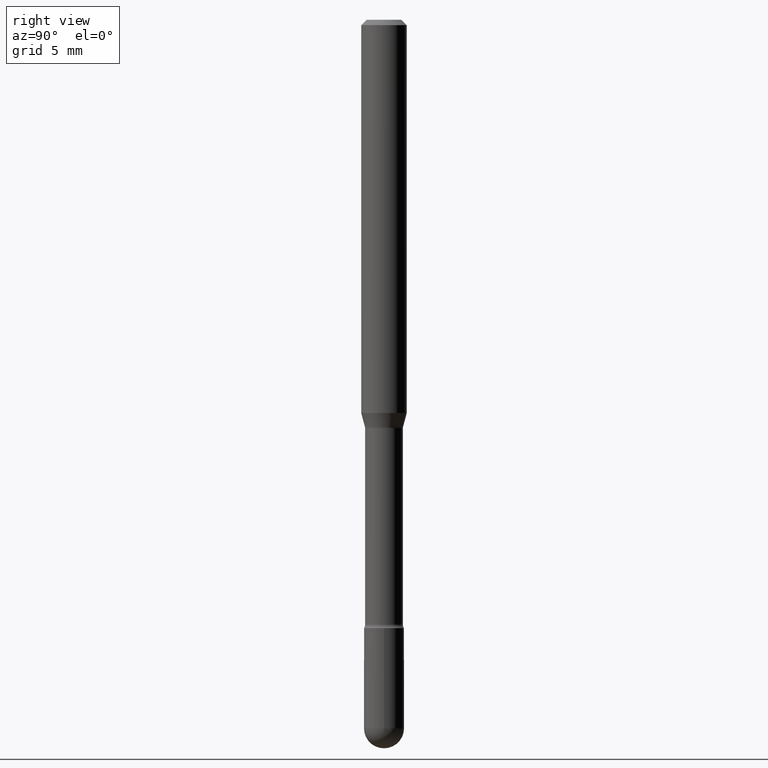
[diagram: clean part render]
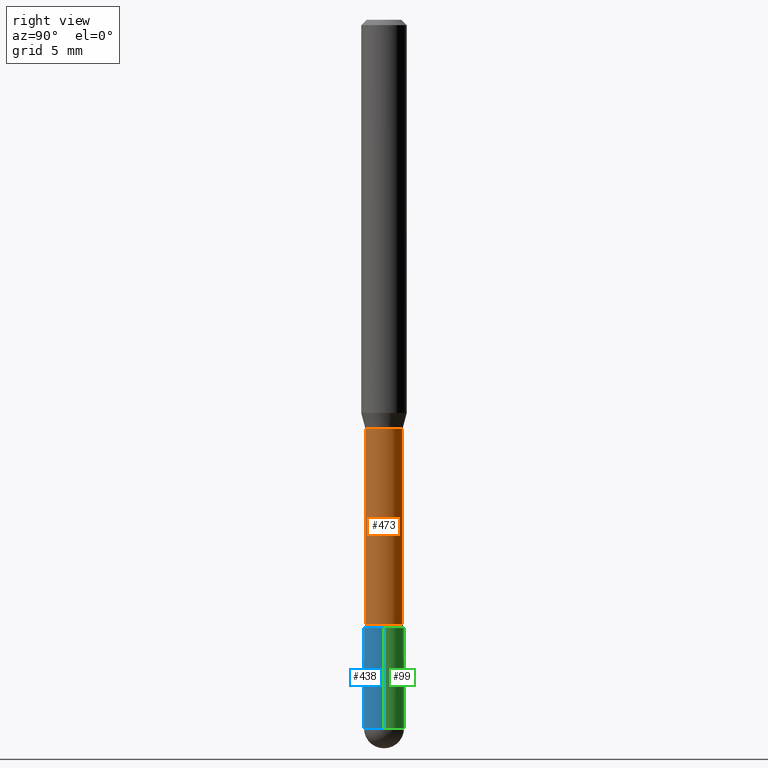
[diagram: same view with three faces highlighted in distinct colors, each labeled with its STEP entity id]
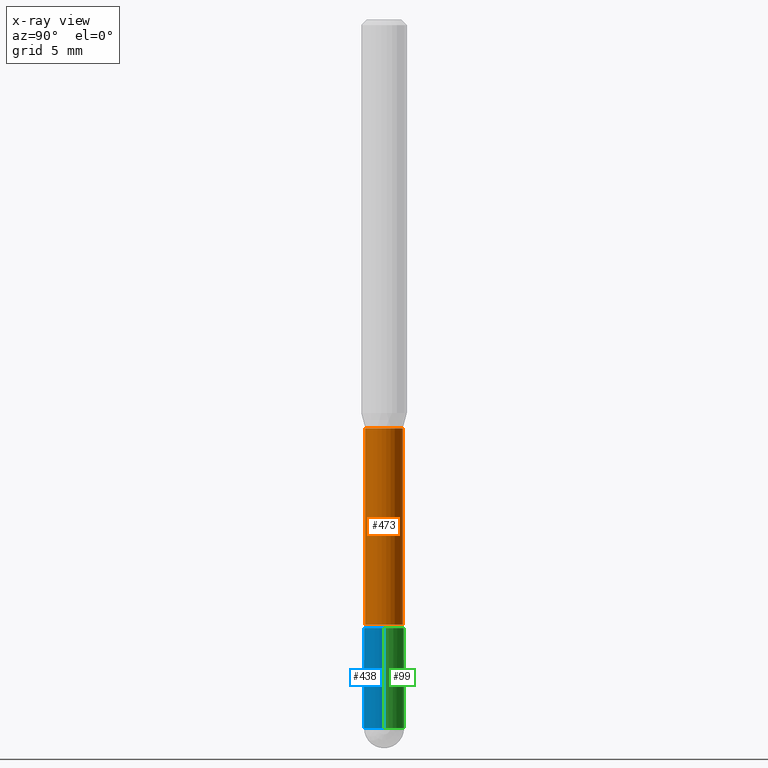
[diagram: x-ray of the same camera — body ghosted, the three highlighted faces saturated]
A machine part, right view with three faces highlighted in distinct colors.
The next image is the same camera in x-ray (body ghosted, the three faces saturated) — at least one of them is partly hidden behind the body in this view.
Their STEP definitions:

[orange] entity #473 — the highlighted cylindrical surface (edge-blend (fillet) strip) has radius 1.3132 mm, axis along (-0, 0, 1).
#15 = DIRECTION ( 'NONE',  ( -2.445407676083819856E-29, 3.491568880627540289E-15, 1.000000000000000000 ) ) ;
#21 = CARTESIAN_POINT ( 'NONE',  ( -3.610191704363525413E-16, -0.05170000000000391643, -1.121974787463810408 ) ) ;
#47 = DIRECTION ( 'NONE',  ( -2.445407676083820136E-29, 3.491568880627540684E-15, 1.000000000000000000 ) ) ;
#49 = CARTESIAN_POINT ( 'NONE',  ( -3.610191704363799542E-16, -0.05170000000000000984, 6.585875100196899420E-16 ) ) ;
#66 = VERTEX_POINT ( 'NONE', #188 ) ;
#68 = CARTESIAN_POINT ( 'NONE',  ( -3.610191704363393772E-16, -0.05170000000000580381, -1.660613307291702423 ) ) ;
#72 = EDGE_CURVE ( 'NONE', #139, #157, #274, .T. ) ;
#97 = CARTESIAN_POINT ( 'NONE',  ( 4.060876528658069036E-29, -5.798145746495687902E-15, -1.660613307291702645 ) ) ;
#125 = ORIENTED_EDGE ( 'NONE', *, *, #445, .T. ) ;
#139 = VERTEX_POINT ( 'NONE', #21 ) ;
#140 = ORIENTED_EDGE ( 'NONE', *, *, #72, .F. ) ;
#142 = CARTESIAN_POINT ( 'NONE',  ( 3.673505943879717674E-16, 0.05170000000000000984, 2.975592877628021845E-16 ) ) ;
#156 = VERTEX_POINT ( 'NONE', #68 ) ;
#157 = VERTEX_POINT ( 'NONE', #229 ) ;
#170 = AXIS2_PLACEMENT_3D ( 'NONE', #97, #392, #399 ) ;
#175 = DIRECTION ( 'NONE',  ( -6.982962677686264344E-15, -1.000000000000000000, 3.491568880627541472E-15 ) ) ;
#187 = LINE ( 'NONE', #49, #564 ) ;
#188 = CARTESIAN_POINT ( 'NONE',  ( 3.790745495280543333E-16, 0.05169999999999420892, -1.660613307291702867 ) ) ;
#199 = AXIS2_PLACEMENT_3D ( 'NONE', #302, #343, #351 ) ;
#229 = CARTESIAN_POINT ( 'NONE',  ( 3.673505943880124923E-16, 0.05169999999999608242, -1.121974787463810630 ) ) ;
#262 = DIRECTION ( 'NONE',  ( -2.445407676083820136E-29, 3.491568880627540684E-15, 1.000000000000000000 ) ) ;
#266 = VECTOR ( 'NONE', #47, 39.37007874015748143 ) ;
#274 = CIRCLE ( 'NONE', #199, 0.05169999999999999596 ) ;
#302 = CARTESIAN_POINT ( 'NONE',  ( 2.743685757636514804E-29, -3.917452252757339615E-15, -1.121974787463810630 ) ) ;
#323 = EDGE_LOOP ( 'NONE', ( #125, #332, #140, #562 ) ) ;
#332 = ORIENTED_EDGE ( 'NONE', *, *, #541, .T. ) ;
#343 = DIRECTION ( 'NONE',  ( -2.445407676083819856E-29, 3.491568880627540289E-15, 1.000000000000000000 ) ) ;
#348 = LINE ( 'NONE', #142, #266 ) ;
#351 = DIRECTION ( 'NONE',  ( -6.982962677686266711E-15, -1.000000000000000000, 2.642019336232363246E-15 ) ) ;
#384 = CARTESIAN_POINT ( 'NONE',  ( -1.169113584055446105E-44, 1.669184350826100908E-30, 4.780733988912460139E-16 ) ) ;
#392 = DIRECTION ( 'NONE',  ( -2.445407676083819856E-29, 3.491568880627540289E-15, 1.000000000000000000 ) ) ;
#395 = CIRCLE ( 'NONE', #170, 0.05170000000000000984 ) ;
#399 = DIRECTION ( 'NONE',  ( -6.982962677686264344E-15, -1.000000000000000000, 5.284038672464724914E-15 ) ) ;
#443 = FACE_OUTER_BOUND ( 'NONE', #323, .T. ) ;
#444 = CYLINDRICAL_SURFACE ( 'NONE', #489, 0.05170000000000000984 ) ;
#445 = EDGE_CURVE ( 'NONE', #156, #66, #395, .T. ) ;
#473 = ADVANCED_FACE ( 'NONE', ( #443 ), #444, .T. ) ;
#489 = AXIS2_PLACEMENT_3D ( 'NONE', #384, #15, #175 ) ;
#520 = EDGE_CURVE ( 'NONE', #156, #139, #187, .T. ) ;
#541 = EDGE_CURVE ( 'NONE', #66, #157, #348, .T. ) ;
#562 = ORIENTED_EDGE ( 'NONE', *, *, #520, .F. ) ;
#564 = VECTOR ( 'NONE', #262, 39.37007874015748143 ) ;

[blue] entity #438 — the highlighted cylindrical surface (edge-blend (fillet) strip) has radius 1.397 mm, axis along (-0, 0, 1).
#5 = CARTESIAN_POINT ( 'NONE',  ( -0.05500000000000000028, 3.907985046680551042E-16, -2.705414299640198362E-30 ) ) ;
#11 = ORIENTED_EDGE ( 'NONE', *, *, #413, .T. ) ;
#29 = AXIS2_PLACEMENT_3D ( 'NONE', #167, #430, #334 ) ;
#34 = EDGE_CURVE ( 'NONE', #412, #555, #100, .T. ) ;
#38 = CYLINDRICAL_SURFACE ( 'NONE', #29, 0.05500000000000000028 ) ;
#43 = CIRCLE ( 'NONE', #435, 0.05500000000000000028 ) ;
#100 = LINE ( 'NONE', #5, #365 ) ;
#101 = VERTEX_POINT ( 'NONE', #532 ) ;
#103 = DIRECTION ( 'NONE',  ( 1.000000000000000000, -6.982962677686262766E-15, 0.000000000000000000 ) ) ;
#130 = EDGE_CURVE ( 'NONE', #412, #147, #485, .T. ) ;
#132 = AXIS2_PLACEMENT_3D ( 'NONE', #372, #194, #201 ) ;
#147 = VERTEX_POINT ( 'NONE', #544 ) ;
#160 = DIRECTION ( 'NONE',  ( -2.445468806185136877E-29, 3.491481338843145188E-15, 1.000000000000000000 ) ) ;
#165 = ORIENTED_EDGE ( 'NONE', *, *, #306, .T. ) ;
#167 = CARTESIAN_POINT ( 'NONE',  ( 0.000000000000000000, 0.000000000000000000, 0.000000000000000000 ) ) ;
#172 = EDGE_CURVE ( 'NONE', #555, #236, #43, .T. ) ;
#182 = CARTESIAN_POINT ( 'NONE',  ( -0.05500000000000000028, -5.920054015290930021E-15, -1.669999999999999929 ) ) ;
#194 = DIRECTION ( 'NONE',  ( -2.445468806185136597E-29, 3.491481338843145583E-15, 1.000000000000000000 ) ) ;
#201 = DIRECTION ( 'NONE',  ( 1.000000000000000000, -6.982962677686262766E-15, 0.000000000000000000 ) ) ;
#202 = ORIENTED_EDGE ( 'NONE', *, *, #172, .F. ) ;
#205 = LINE ( 'NONE', #428, #448 ) ;
#206 = CARTESIAN_POINT ( 'NONE',  ( 4.756436828030090255E-29, -6.790931204049917095E-15, -1.944999999999999840 ) ) ;
#208 = CIRCLE ( 'NONE', #344, 0.05500000000000000028 ) ;
#236 = VERTEX_POINT ( 'NONE', #456 ) ;
#253 = FACE_OUTER_BOUND ( 'NONE', #269, .T. ) ;
#269 = EDGE_LOOP ( 'NONE', ( #289, #563, #165, #11, #202 ) ) ;
#286 = DIRECTION ( 'NONE',  ( -2.445468806185136597E-29, 3.491481338843145583E-15, 1.000000000000000000 ) ) ;
#289 = ORIENTED_EDGE ( 'NONE', *, *, #34, .F. ) ;
#306 = EDGE_CURVE ( 'NONE', #147, #101, #208, .T. ) ;
#322 = CARTESIAN_POINT ( 'NONE',  ( 4.083932906329177803E-29, -5.830773835868053056E-15, -1.669999999999999929 ) ) ;
#331 = DIRECTION ( 'NONE',  ( -2.445468806185136597E-29, 3.491481338843145583E-15, 1.000000000000000000 ) ) ;
#334 = DIRECTION ( 'NONE',  ( 1.000000000000000000, -6.982962677686266711E-15, 4.876176775795935793E-29 ) ) ;
#344 = AXIS2_PLACEMENT_3D ( 'NONE', #206, #331, #508 ) ;
#365 = VECTOR ( 'NONE', #451, 39.37007874015748143 ) ;
#372 = CARTESIAN_POINT ( 'NONE',  ( 4.756436828030090255E-29, -6.790931204049917095E-15, -1.944999999999999840 ) ) ;
#412 = VERTEX_POINT ( 'NONE', #554 ) ;
#413 = EDGE_CURVE ( 'NONE', #101, #236, #205, .T. ) ;
#428 = CARTESIAN_POINT ( 'NONE',  ( 0.05500000000000000028, -3.840629472727446888E-16, 2.681897226687764826E-30 ) ) ;
#430 = DIRECTION ( 'NONE',  ( -2.445468806185136597E-29, 3.491481338843145583E-15, 1.000000000000000000 ) ) ;
#435 = AXIS2_PLACEMENT_3D ( 'NONE', #322, #286, #103 ) ;
#438 = ADVANCED_FACE ( 'NONE', ( #253 ), #38, .T. ) ;
#448 = VECTOR ( 'NONE', #160, 39.37007874015748143 ) ;
#451 = DIRECTION ( 'NONE',  ( -2.445468806185136877E-29, 3.491481338843145188E-15, 1.000000000000000000 ) ) ;
#456 = CARTESIAN_POINT ( 'NONE',  ( 0.05500000000000000028, -6.214836783140797252E-15, -1.669999999999999929 ) ) ;
#485 = CIRCLE ( 'NONE', #132, 0.05500000000000000028 ) ;
#508 = DIRECTION ( 'NONE',  ( 1.000000000000000000, -6.982962677686262766E-15, 0.000000000000000000 ) ) ;
#532 = CARTESIAN_POINT ( 'NONE',  ( 0.05500000000000000028, -6.694915467231730455E-15, -1.944999999999999840 ) ) ;
#544 = CARTESIAN_POINT ( 'NONE',  ( -3.907985046680076246E-16, -0.05500000000000680733, -1.944999999999999618 ) ) ;
#554 = CARTESIAN_POINT ( 'NONE',  ( -0.05500000000000000028, -5.920054015290930810E-15, -1.944999999999999840 ) ) ;
#555 = VERTEX_POINT ( 'NONE', #182 ) ;
#563 = ORIENTED_EDGE ( 'NONE', *, *, #130, .T. ) ;

[green] entity #99 — the highlighted cylindrical surface (edge-blend (fillet) strip) has radius 1.397 mm, axis along (-0, 0, 1).
#1 = DIRECTION ( 'NONE',  ( -2.445468806185136597E-29, 3.491481338843145583E-15, 1.000000000000000000 ) ) ;
#4 = DIRECTION ( 'NONE',  ( 1.000000000000000000, -6.982962677686262766E-15, 0.000000000000000000 ) ) ;
#5 = CARTESIAN_POINT ( 'NONE',  ( -0.05500000000000000028, 3.907985046680551042E-16, -2.705414299640198362E-30 ) ) ;
#9 = CYLINDRICAL_SURFACE ( 'NONE', #335, 0.05500000000000000028 ) ;
#34 = EDGE_CURVE ( 'NONE', #412, #555, #100, .T. ) ;
#41 = ORIENTED_EDGE ( 'NONE', *, *, #515, .T. ) ;
#44 = DIRECTION ( 'NONE',  ( -2.445468806185136597E-29, 3.491481338843145583E-15, 1.000000000000000000 ) ) ;
#50 = CIRCLE ( 'NONE', #108, 0.05500000000000000028 ) ;
#74 = ORIENTED_EDGE ( 'NONE', *, *, #535, .T. ) ;
#99 = ADVANCED_FACE ( 'NONE', ( #219 ), #9, .T. ) ;
#100 = LINE ( 'NONE', #5, #365 ) ;
#101 = VERTEX_POINT ( 'NONE', #532 ) ;
#108 = AXIS2_PLACEMENT_3D ( 'NONE', #379, #561, #126 ) ;
#126 = DIRECTION ( 'NONE',  ( 1.000000000000000000, -6.982962677686262766E-15, 0.000000000000000000 ) ) ;
#143 = DIRECTION ( 'NONE',  ( -2.445468806185136597E-29, 3.491481338843145583E-15, 1.000000000000000000 ) ) ;
#160 = DIRECTION ( 'NONE',  ( -2.445468806185136877E-29, 3.491481338843145188E-15, 1.000000000000000000 ) ) ;
#173 = DIRECTION ( 'NONE',  ( 1.000000000000000000, -6.982962677686262766E-15, 0.000000000000000000 ) ) ;
#182 = CARTESIAN_POINT ( 'NONE',  ( -0.05500000000000000028, -5.920054015290930021E-15, -1.669999999999999929 ) ) ;
#205 = LINE ( 'NONE', #428, #448 ) ;
#216 = EDGE_LOOP ( 'NONE', ( #41, #354, #526, #240, #74 ) ) ;
#219 = FACE_OUTER_BOUND ( 'NONE', #216, .T. ) ;
#236 = VERTEX_POINT ( 'NONE', #456 ) ;
#240 = ORIENTED_EDGE ( 'NONE', *, *, #413, .F. ) ;
#307 = DIRECTION ( 'NONE',  ( 1.000000000000000000, -6.982962677686266711E-15, 4.876176775795935793E-29 ) ) ;
#326 = EDGE_CURVE ( 'NONE', #236, #555, #50, .T. ) ;
#335 = AXIS2_PLACEMENT_3D ( 'NONE', #349, #143, #307 ) ;
#336 = VERTEX_POINT ( 'NONE', #420 ) ;
#342 = CARTESIAN_POINT ( 'NONE',  ( 4.756436828030090255E-29, -6.790931204049917095E-15, -1.944999999999999840 ) ) ;
#349 = CARTESIAN_POINT ( 'NONE',  ( 0.000000000000000000, 0.000000000000000000, 0.000000000000000000 ) ) ;
#353 = AXIS2_PLACEMENT_3D ( 'NONE', #474, #1, #173 ) ;
#354 = ORIENTED_EDGE ( 'NONE', *, *, #34, .T. ) ;
#365 = VECTOR ( 'NONE', #451, 39.37007874015748143 ) ;
#379 = CARTESIAN_POINT ( 'NONE',  ( 4.083932906329177803E-29, -5.830773835868053056E-15, -1.669999999999999929 ) ) ;
#412 = VERTEX_POINT ( 'NONE', #554 ) ;
#413 = EDGE_CURVE ( 'NONE', #101, #236, #205, .T. ) ;
#420 = CARTESIAN_POINT ( 'NONE',  ( 3.840629472727923656E-16, 0.05499999999999323486, -1.945000000000000062 ) ) ;
#428 = CARTESIAN_POINT ( 'NONE',  ( 0.05500000000000000028, -3.840629472727446888E-16, 2.681897226687764826E-30 ) ) ;
#448 = VECTOR ( 'NONE', #160, 39.37007874015748143 ) ;
#451 = DIRECTION ( 'NONE',  ( -2.445468806185136877E-29, 3.491481338843145188E-15, 1.000000000000000000 ) ) ;
#456 = CARTESIAN_POINT ( 'NONE',  ( 0.05500000000000000028, -6.214836783140797252E-15, -1.669999999999999929 ) ) ;
#474 = CARTESIAN_POINT ( 'NONE',  ( 4.756436828030090255E-29, -6.790931204049917095E-15, -1.944999999999999840 ) ) ;
#477 = CIRCLE ( 'NONE', #353, 0.05500000000000000028 ) ;
#498 = CIRCLE ( 'NONE', #531, 0.05500000000000000028 ) ;
#515 = EDGE_CURVE ( 'NONE', #336, #412, #498, .T. ) ;
#526 = ORIENTED_EDGE ( 'NONE', *, *, #326, .F. ) ;
#531 = AXIS2_PLACEMENT_3D ( 'NONE', #342, #44, #4 ) ;
#532 = CARTESIAN_POINT ( 'NONE',  ( 0.05500000000000000028, -6.694915467231730455E-15, -1.944999999999999840 ) ) ;
#535 = EDGE_CURVE ( 'NONE', #101, #336, #477, .T. ) ;
#554 = CARTESIAN_POINT ( 'NONE',  ( -0.05500000000000000028, -5.920054015290930810E-15, -1.944999999999999840 ) ) ;
#555 = VERTEX_POINT ( 'NONE', #182 ) ;
#561 = DIRECTION ( 'NONE',  ( -2.445468806185136597E-29, 3.491481338843145583E-15, 1.000000000000000000 ) ) ;